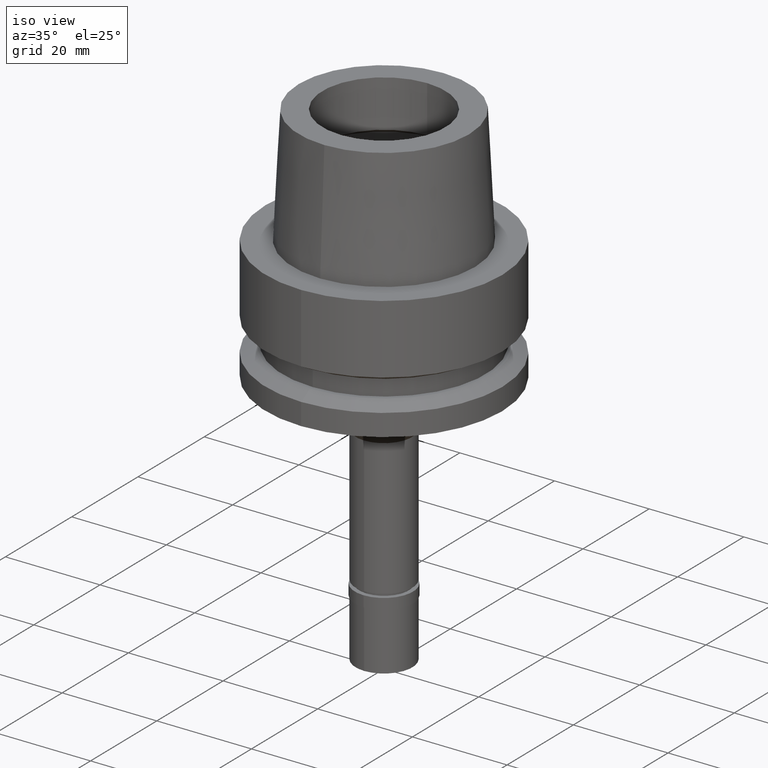
[diagram: clean part render]
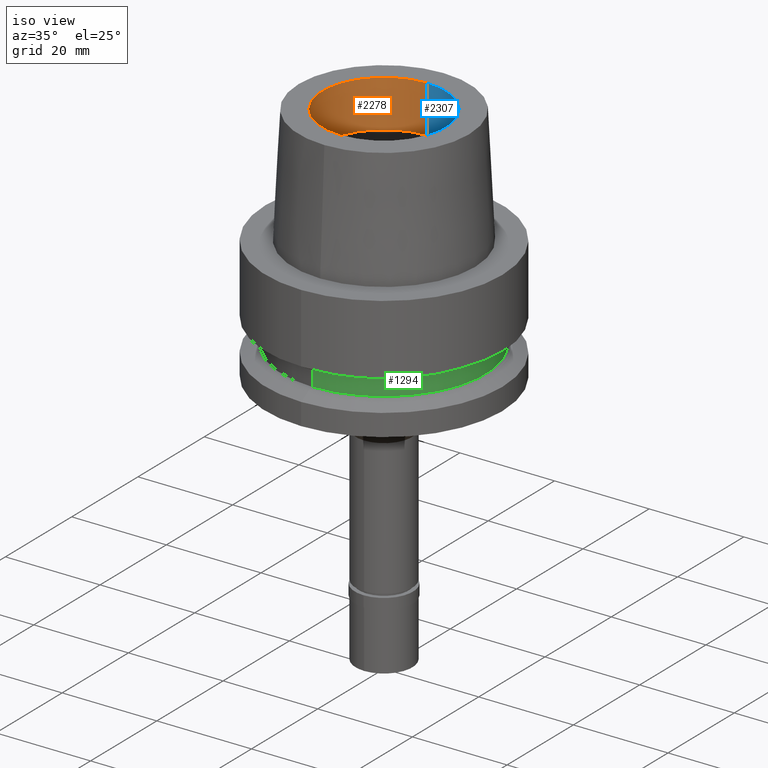
[diagram: same view with three faces highlighted in distinct colors, each labeled with its STEP entity id]
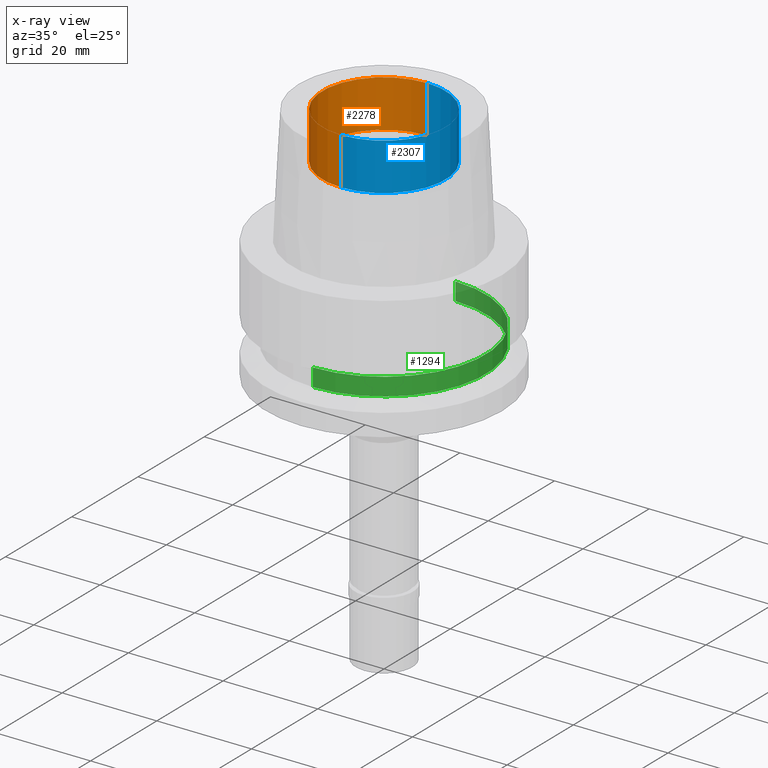
[diagram: x-ray of the same camera — body ghosted, the three highlighted faces saturated]
A machine part, iso view with three faces highlighted in distinct colors.
The next image is the same camera in x-ray (body ghosted, the three faces saturated) — at least one of them is partly hidden behind the body in this view.
Their STEP definitions:

[orange] entity #2278 — the highlighted cylindrical surface (partial cylindrical patch) has radius 13 mm, axis along (0, 0, 1).
#109 = EDGE_CURVE ( 'NONE', #1403, #1125, #564, .T. ) ;
#137 = AXIS2_PLACEMENT_3D ( 'NONE', #909, #1691, #479 ) ;
#144 = CARTESIAN_POINT ( 'NONE',  ( 0.0000000000000000000, -13.00000000000000000, 14.99602540378000093 ) ) ;
#267 = ORIENTED_EDGE ( 'NONE', *, *, #1671, .F. ) ;
#348 = CARTESIAN_POINT ( 'NONE',  ( 0.0000000000000000000, 13.00000000000000000, 14.99602540378000093 ) ) ;
#433 = AXIS2_PLACEMENT_3D ( 'NONE', #1347, #1516, #905 ) ;
#479 = DIRECTION ( 'NONE',  ( 0.0000000000000000000, 1.000000000000000000, 0.0000000000000000000 ) ) ;
#564 = CIRCLE ( 'NONE', #2574, 13.00000000000000000 ) ;
#795 = VECTOR ( 'NONE', #1616, 1000.000000000000000 ) ;
#905 = DIRECTION ( 'NONE',  ( 0.0000000000000000000, 1.000000000000000000, 0.0000000000000000000 ) ) ;
#909 = CARTESIAN_POINT ( 'NONE',  ( 0.0000000000000000000, 0.0000000000000000000, -81.04999999999999716 ) ) ;
#918 = CIRCLE ( 'NONE', #433, 13.00000000000000000 ) ;
#952 = CARTESIAN_POINT ( 'NONE',  ( 0.0000000000000000000, 13.00000000000000000, 25.00000000000000000 ) ) ;
#980 = DIRECTION ( 'NONE',  ( 0.0000000000000000000, 9.659541928455000240E-14, 1.000000000000000000 ) ) ;
#1125 = VERTEX_POINT ( 'NONE', #1664 ) ;
#1347 = CARTESIAN_POINT ( 'NONE',  ( 0.0000000000000000000, 0.0000000000000000000, 25.00000000000000000 ) ) ;
#1350 = ORIENTED_EDGE ( 'NONE', *, *, #2086, .T. ) ;
#1403 = VERTEX_POINT ( 'NONE', #2138 ) ;
#1412 = DIRECTION ( 'NONE',  ( 0.0000000000000000000, -1.000000000000000000, 0.0000000000000000000 ) ) ;
#1468 = EDGE_CURVE ( 'NONE', #1879, #2593, #918, .T. ) ;
#1516 = DIRECTION ( 'NONE',  ( 0.0000000000000000000, 0.0000000000000000000, 1.000000000000000000 ) ) ;
#1593 = DIRECTION ( 'NONE',  ( 0.0000000000000000000, 0.0000000000000000000, -1.000000000000000000 ) ) ;
#1616 = DIRECTION ( 'NONE',  ( 0.0000000000000000000, -9.659541928455000240E-14, 1.000000000000000000 ) ) ;
#1632 = LINE ( 'NONE', #348, #795 ) ;
#1634 = CARTESIAN_POINT ( 'NONE',  ( 0.0000000000000000000, 0.0000000000000000000, 14.99602540378000093 ) ) ;
#1663 = LINE ( 'NONE', #144, #1922 ) ;
#1664 = CARTESIAN_POINT ( 'NONE',  ( 0.0000000000000000000, 13.00000000000000000, 14.99602540378000093 ) ) ;
#1671 = EDGE_CURVE ( 'NONE', #1403, #2593, #1663, .T. ) ;
#1691 = DIRECTION ( 'NONE',  ( 0.0000000000000000000, 0.0000000000000000000, 1.000000000000000000 ) ) ;
#1752 = ORIENTED_EDGE ( 'NONE', *, *, #1468, .T. ) ;
#1879 = VERTEX_POINT ( 'NONE', #952 ) ;
#1922 = VECTOR ( 'NONE', #980, 1000.000000000000000 ) ;
#1990 = ORIENTED_EDGE ( 'NONE', *, *, #109, .T. ) ;
#2086 = EDGE_CURVE ( 'NONE', #1125, #1879, #1632, .T. ) ;
#2112 = FACE_OUTER_BOUND ( 'NONE', #2128, .T. ) ;
#2128 = EDGE_LOOP ( 'NONE', ( #1752, #267, #1990, #1350 ) ) ;
#2138 = CARTESIAN_POINT ( 'NONE',  ( 0.0000000000000000000, -13.00000000000000000, 14.99602540378000093 ) ) ;
#2197 = CARTESIAN_POINT ( 'NONE',  ( 0.0000000000000000000, -13.00000000000000000, 25.00000000000000000 ) ) ;
#2278 = ADVANCED_FACE ( 'NONE', ( #2112 ), #2673, .F. ) ;
#2574 = AXIS2_PLACEMENT_3D ( 'NONE', #1634, #1593, #1412 ) ;
#2593 = VERTEX_POINT ( 'NONE', #2197 ) ;
#2673 = CYLINDRICAL_SURFACE ( 'NONE', #137, 13.00000000000000000 ) ;

[blue] entity #2307 — the highlighted cylindrical surface (partial cylindrical patch) has radius 13 mm, axis along (0, 0, 1).
#37 = EDGE_CURVE ( 'NONE', #1125, #1403, #1060, .T. ) ;
#144 = CARTESIAN_POINT ( 'NONE',  ( 0.0000000000000000000, -13.00000000000000000, 14.99602540378000093 ) ) ;
#198 = ORIENTED_EDGE ( 'NONE', *, *, #1671, .T. ) ;
#240 = FACE_OUTER_BOUND ( 'NONE', #2085, .T. ) ;
#266 = AXIS2_PLACEMENT_3D ( 'NONE', #1733, #465, #2563 ) ;
#327 = DIRECTION ( 'NONE',  ( 0.0000000000000000000, 0.0000000000000000000, -1.000000000000000000 ) ) ;
#348 = CARTESIAN_POINT ( 'NONE',  ( 0.0000000000000000000, 13.00000000000000000, 14.99602540378000093 ) ) ;
#397 = ORIENTED_EDGE ( 'NONE', *, *, #37, .T. ) ;
#465 = DIRECTION ( 'NONE',  ( 0.0000000000000000000, 0.0000000000000000000, 1.000000000000000000 ) ) ;
#795 = VECTOR ( 'NONE', #1616, 1000.000000000000000 ) ;
#883 = ORIENTED_EDGE ( 'NONE', *, *, #2429, .T. ) ;
#925 = AXIS2_PLACEMENT_3D ( 'NONE', #1703, #2526, #1952 ) ;
#952 = CARTESIAN_POINT ( 'NONE',  ( 0.0000000000000000000, 13.00000000000000000, 25.00000000000000000 ) ) ;
#980 = DIRECTION ( 'NONE',  ( 0.0000000000000000000, 9.659541928455000240E-14, 1.000000000000000000 ) ) ;
#1014 = DIRECTION ( 'NONE',  ( 0.0000000000000000000, 1.000000000000000000, 0.0000000000000000000 ) ) ;
#1060 = CIRCLE ( 'NONE', #1964, 13.00000000000000000 ) ;
#1125 = VERTEX_POINT ( 'NONE', #1664 ) ;
#1403 = VERTEX_POINT ( 'NONE', #2138 ) ;
#1459 = CIRCLE ( 'NONE', #266, 13.00000000000000000 ) ;
#1616 = DIRECTION ( 'NONE',  ( 0.0000000000000000000, -9.659541928455000240E-14, 1.000000000000000000 ) ) ;
#1632 = LINE ( 'NONE', #348, #795 ) ;
#1663 = LINE ( 'NONE', #144, #1922 ) ;
#1664 = CARTESIAN_POINT ( 'NONE',  ( 0.0000000000000000000, 13.00000000000000000, 14.99602540378000093 ) ) ;
#1671 = EDGE_CURVE ( 'NONE', #1403, #2593, #1663, .T. ) ;
#1703 = CARTESIAN_POINT ( 'NONE',  ( 0.0000000000000000000, 0.0000000000000000000, -81.04999999999999716 ) ) ;
#1733 = CARTESIAN_POINT ( 'NONE',  ( 0.0000000000000000000, 0.0000000000000000000, 25.00000000000000000 ) ) ;
#1791 = CARTESIAN_POINT ( 'NONE',  ( 0.0000000000000000000, 0.0000000000000000000, 14.99602540378000093 ) ) ;
#1879 = VERTEX_POINT ( 'NONE', #952 ) ;
#1922 = VECTOR ( 'NONE', #980, 1000.000000000000000 ) ;
#1952 = DIRECTION ( 'NONE',  ( 0.0000000000000000000, 1.000000000000000000, 0.0000000000000000000 ) ) ;
#1964 = AXIS2_PLACEMENT_3D ( 'NONE', #1791, #327, #1014 ) ;
#2085 = EDGE_LOOP ( 'NONE', ( #397, #198, #883, #2089 ) ) ;
#2086 = EDGE_CURVE ( 'NONE', #1125, #1879, #1632, .T. ) ;
#2089 = ORIENTED_EDGE ( 'NONE', *, *, #2086, .F. ) ;
#2138 = CARTESIAN_POINT ( 'NONE',  ( 0.0000000000000000000, -13.00000000000000000, 14.99602540378000093 ) ) ;
#2197 = CARTESIAN_POINT ( 'NONE',  ( 0.0000000000000000000, -13.00000000000000000, 25.00000000000000000 ) ) ;
#2307 = ADVANCED_FACE ( 'NONE', ( #240 ), #2378, .F. ) ;
#2378 = CYLINDRICAL_SURFACE ( 'NONE', #925, 13.00000000000000000 ) ;
#2429 = EDGE_CURVE ( 'NONE', #2593, #1879, #1459, .T. ) ;
#2526 = DIRECTION ( 'NONE',  ( 0.0000000000000000000, 0.0000000000000000000, 1.000000000000000000 ) ) ;
#2563 = DIRECTION ( 'NONE',  ( 0.0000000000000000000, -1.000000000000000000, 0.0000000000000000000 ) ) ;
#2593 = VERTEX_POINT ( 'NONE', #2197 ) ;

[green] entity #1294 — the highlighted cylindrical surface (partial cylindrical patch) has radius 21.5 mm, axis along (0, 0, 1).
#85 = CARTESIAN_POINT ( 'NONE',  ( 0.0000000000000000000, 21.50000000000000000, -19.87500000000000000 ) ) ;
#183 = DIRECTION ( 'NONE',  ( 0.0000000000000000000, 0.0000000000000000000, -1.000000000000000000 ) ) ;
#246 = DIRECTION ( 'NONE',  ( 0.0000000000000000000, 0.0000000000000000000, -1.000000000000000000 ) ) ;
#332 = CARTESIAN_POINT ( 'NONE',  ( 0.0000000000000000000, 0.0000000000000000000, -19.87500000000000000 ) ) ;
#363 = EDGE_CURVE ( 'NONE', #693, #2334, #2537, .T. ) ;
#377 = DIRECTION ( 'NONE',  ( 0.0000000000000000000, 0.0000000000000000000, 1.000000000000000000 ) ) ;
#475 = ORIENTED_EDGE ( 'NONE', *, *, #363, .T. ) ;
#645 = ORIENTED_EDGE ( 'NONE', *, *, #1187, .F. ) ;
#666 = CARTESIAN_POINT ( 'NONE',  ( 0.0000000000000000000, -21.50000000000000000, -16.12500000000000000 ) ) ;
#693 = VERTEX_POINT ( 'NONE', #1900 ) ;
#830 = DIRECTION ( 'NONE',  ( 0.0000000000000000000, 1.000000000000000000, 0.0000000000000000000 ) ) ;
#831 = CYLINDRICAL_SURFACE ( 'NONE', #1751, 21.50000000000000000 ) ;
#927 = EDGE_CURVE ( 'NONE', #2334, #1152, #2654, .T. ) ;
#948 = DIRECTION ( 'NONE',  ( 0.0000000000000000000, -1.000000000000000000, 0.0000000000000000000 ) ) ;
#966 = DIRECTION ( 'NONE',  ( 0.0000000000000000000, 0.0000000000000000000, -1.000000000000000000 ) ) ;
#1040 = FACE_OUTER_BOUND ( 'NONE', #2485, .T. ) ;
#1077 = CARTESIAN_POINT ( 'NONE',  ( 0.0000000000000000000, 21.50000000000000000, -16.12500000000000000 ) ) ;
#1080 = CARTESIAN_POINT ( 'NONE',  ( 0.0000000000000000000, 0.0000000000000000000, -16.12500000000000000 ) ) ;
#1147 = AXIS2_PLACEMENT_3D ( 'NONE', #1080, #246, #830 ) ;
#1152 = VERTEX_POINT ( 'NONE', #1390 ) ;
#1187 = EDGE_CURVE ( 'NONE', #693, #2610, #1638, .T. ) ;
#1227 = CARTESIAN_POINT ( 'NONE',  ( 0.0000000000000000000, -21.50000000000000000, -16.12500000000000000 ) ) ;
#1294 = ADVANCED_FACE ( 'NONE', ( #1040 ), #831, .T. ) ;
#1317 = VECTOR ( 'NONE', #183, 1000.000000000000000 ) ;
#1390 = CARTESIAN_POINT ( 'NONE',  ( 0.0000000000000000000, -21.50000000000000000, -19.87500000000000000 ) ) ;
#1449 = VECTOR ( 'NONE', #966, 1000.000000000000000 ) ;
#1454 = CIRCLE ( 'NONE', #2502, 21.50000000000000000 ) ;
#1584 = ORIENTED_EDGE ( 'NONE', *, *, #927, .T. ) ;
#1638 = LINE ( 'NONE', #1077, #1317 ) ;
#1713 = EDGE_CURVE ( 'NONE', #1152, #2610, #1454, .T. ) ;
#1751 = AXIS2_PLACEMENT_3D ( 'NONE', #2512, #2487, #1870 ) ;
#1870 = DIRECTION ( 'NONE',  ( 0.0000000000000000000, 1.000000000000000000, 0.0000000000000000000 ) ) ;
#1900 = CARTESIAN_POINT ( 'NONE',  ( 0.0000000000000000000, 21.50000000000000000, -16.12500000000000000 ) ) ;
#2282 = ORIENTED_EDGE ( 'NONE', *, *, #1713, .T. ) ;
#2334 = VERTEX_POINT ( 'NONE', #666 ) ;
#2485 = EDGE_LOOP ( 'NONE', ( #475, #1584, #2282, #645 ) ) ;
#2487 = DIRECTION ( 'NONE',  ( 0.0000000000000000000, 0.0000000000000000000, 1.000000000000000000 ) ) ;
#2502 = AXIS2_PLACEMENT_3D ( 'NONE', #332, #377, #948 ) ;
#2512 = CARTESIAN_POINT ( 'NONE',  ( 0.0000000000000000000, 0.0000000000000000000, -81.04999999999999716 ) ) ;
#2537 = CIRCLE ( 'NONE', #1147, 21.50000000000000000 ) ;
#2610 = VERTEX_POINT ( 'NONE', #85 ) ;
#2654 = LINE ( 'NONE', #1227, #1449 ) ;